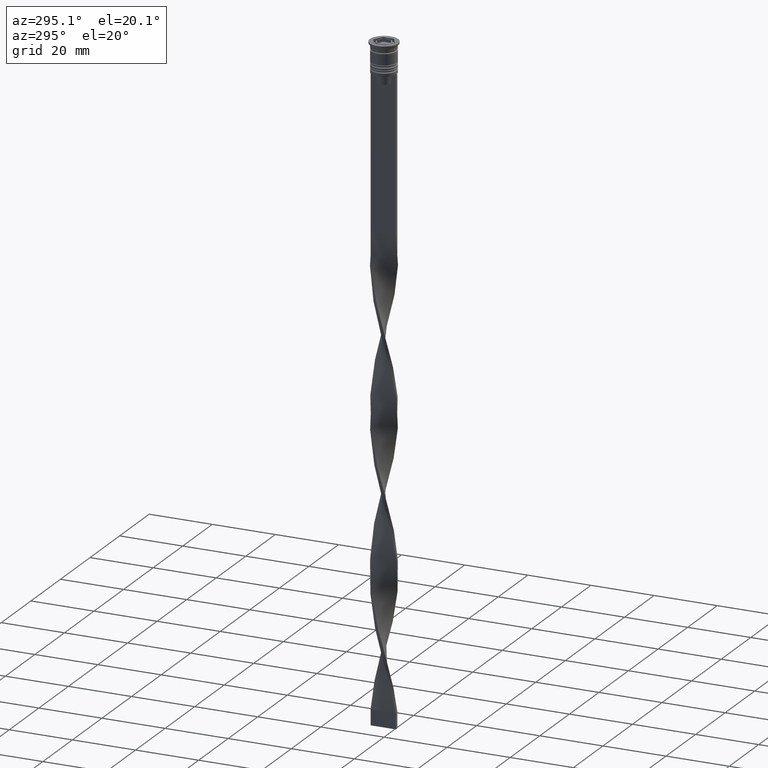
[diagram: clean part render]
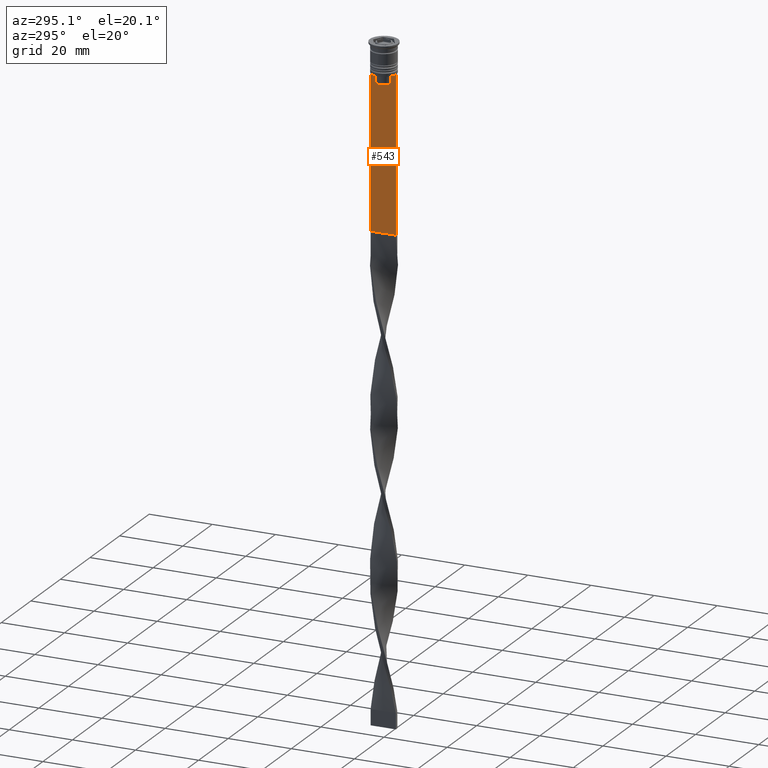
[diagram: same view with one face highlighted and labeled with its STEP entity id]
A machine part, auxiliary view. The second image highlights one B-rep face of the part: STEP entity #543.
In plain terms, the highlighted planar face has unit normal (-1, 0, 0).
Its self-contained STEP definition (entity closure, byte-faithful):
#21 = VERTEX_POINT ( 'NONE', #3205 ) ;
#33 = VERTEX_POINT ( 'NONE', #484 ) ;
#40 = EDGE_CURVE ( 'NONE', #1028, #3893, #1703, .T. ) ;
#43 = PLANE ( 'NONE',  #3659 ) ;
#158 = EDGE_CURVE ( 'NONE', #2777, #1595, #2287, .T. ) ;
#190 = CARTESIAN_POINT ( 'NONE',  ( -0.5000000000000000000, 2.347338918861097135, 0.000000000000000000 ) ) ;
#229 = VECTOR ( 'NONE', #1088, 1000.000000000000000 ) ;
#271 = CARTESIAN_POINT ( 'NONE',  ( -0.5000000000000000000, 2.347338918861097135, -10.00000000000000000 ) ) ;
#278 = ORIENTED_EDGE ( 'NONE', *, *, #158, .F. ) ;
#314 = VERTEX_POINT ( 'NONE', #2735 ) ;
#328 = LINE ( 'NONE', #814, #2248 ) ;
#343 = CARTESIAN_POINT ( 'NONE',  ( -0.5000000000000000000, -2.347338918861097135, -10.00000000000000000 ) ) ;
#484 = CARTESIAN_POINT ( 'NONE',  ( -0.5000000000000000000, -2.856571371417138572, -9.500000000000000000 ) ) ;
#501 = EDGE_CURVE ( 'NONE', #3893, #314, #1235, .T. ) ;
#543 = ADVANCED_FACE ( 'NONE', ( #2808 ), #43, .T. ) ;
#570 = VERTEX_POINT ( 'NONE', #2257 ) ;
#571 = CARTESIAN_POINT ( 'NONE',  ( -0.5000000000000000000, -4.000000000000000000, -9.500000000000000000 ) ) ;
#587 = DIRECTION ( 'NONE',  ( 0.000000000000000000, 1.000000000000000000, 0.000000000000000000 ) ) ;
#604 = VECTOR ( 'NONE', #1082, 1000.000000000000000 ) ;
#655 = CARTESIAN_POINT ( 'NONE',  ( -0.5000000000000000000, -2.347338918861097135, -10.00000000000000000 ) ) ;
#658 = ORIENTED_EDGE ( 'NONE', *, *, #3559, .F. ) ;
#733 = CARTESIAN_POINT ( 'NONE',  ( -0.5000000000000000000, -4.000000000000000000, -9.500000000000000000 ) ) ;
#766 = EDGE_CURVE ( 'NONE', #33, #3212, #3457, .T. ) ;
#775 = CARTESIAN_POINT ( 'NONE',  ( -0.5000000000000000000, -4.000000000000000000, -9.500000000000000000 ) ) ;
#814 = CARTESIAN_POINT ( 'NONE',  ( -0.5000000000000000000, -4.000000000000000000, -58.50000000000000000 ) ) ;
#815 = LINE ( 'NONE', #775, #3220 ) ;
#851 = B_SPLINE_CURVE_WITH_KNOTS ( 'NONE', 3,
 ( #343, #1604, #3764, #2243 ),
 .UNSPECIFIED., .F., .F.,
 ( 4, 4 ),
 ( 0.01178336557230038641, 0.01249758354768160454 ),
 .UNSPECIFIED. ) ;
#852 = CARTESIAN_POINT ( 'NONE',  ( -0.5000000000000000000, 4.000000000000000000, -1.437742251701450202 ) ) ;
#857 = DIRECTION ( 'NONE',  ( -0.000000000000000000, -0.000000000000000000, 1.000000000000000000 ) ) ;
#869 = EDGE_CURVE ( 'NONE', #1595, #570, #328, .T. ) ;
#968 = ORIENTED_EDGE ( 'NONE', *, *, #3587, .F. ) ;
#1028 = VERTEX_POINT ( 'NONE', #3876 ) ;
#1052 = CARTESIAN_POINT ( 'NONE',  ( -0.5000000000000000000, -4.000000000000000000, -9.500000000000000000 ) ) ;
#1082 = DIRECTION ( 'NONE',  ( 0.000000000000000000, 0.000000000000000000, -1.000000000000000000 ) ) ;
#1088 = DIRECTION ( 'NONE',  ( 0.000000000000000000, 0.000000000000000000, -1.000000000000000000 ) ) ;
#1144 = CARTESIAN_POINT ( 'NONE',  ( -0.5000000000000000000, 2.517407211010871393, -9.833663366238582171 ) ) ;
#1157 = EDGE_CURVE ( 'NONE', #2724, #570, #2598, .T. ) ;
#1186 = VECTOR ( 'NONE', #1489, 1000.000000000000000 ) ;
#1196 = VECTOR ( 'NONE', #1724, 1000.000000000000000 ) ;
#1207 = CARTESIAN_POINT ( 'NONE',  ( -0.5000000000000000000, 2.687094542495897631, -9.666938847453439010 ) ) ;
#1235 = LINE ( 'NONE', #1558, #3463 ) ;
#1346 = ORIENTED_EDGE ( 'NONE', *, *, #2857, .F. ) ;
#1393 = DIRECTION ( 'NONE',  ( 0.000000000000000000, -1.000000000000000000, 0.000000000000000000 ) ) ;
#1410 = B_SPLINE_CURVE_WITH_KNOTS ( 'NONE', 3,
 ( #1469, #1207, #1144, #271 ),
 .UNSPECIFIED., .F., .F.,
 ( 4, 4 ),
 ( 0.004956812174141195064, 0.005670477137898153989 ),
 .UNSPECIFIED. ) ;
#1447 = LINE ( 'NONE', #571, #1196 ) ;
#1453 = EDGE_CURVE ( 'NONE', #3302, #33, #851, .T. ) ;
#1469 = CARTESIAN_POINT ( 'NONE',  ( -0.5000000000000000000, 2.856571371417138572, -9.500000000000000000 ) ) ;
#1489 = DIRECTION ( 'NONE',  ( 0.000000000000000000, -1.000000000000000000, 0.000000000000000000 ) ) ;
#1535 = ORIENTED_EDGE ( 'NONE', *, *, #501, .F. ) ;
#1558 = CARTESIAN_POINT ( 'NONE',  ( -0.5000000000000000000, 2.399999999999996803, -12.50000000000000000 ) ) ;
#1595 = VERTEX_POINT ( 'NONE', #2603 ) ;
#1604 = CARTESIAN_POINT ( 'NONE',  ( -0.5000000000000000000, -2.517408374291112416, -9.833662228483172285 ) ) ;
#1663 = DIRECTION ( 'NONE',  ( 0.000000000000000000, 0.000000000000000000, -1.000000000000000000 ) ) ;
#1678 = CARTESIAN_POINT ( 'NONE',  ( -0.5000000000000000000, -4.000000000000000000, -1.437742251701450202 ) ) ;
#1703 = LINE ( 'NONE', #190, #3717 ) ;
#1724 = DIRECTION ( 'NONE',  ( 0.000000000000000000, -1.000000000000000000, 0.000000000000000000 ) ) ;
#1794 = EDGE_CURVE ( 'NONE', #314, #3302, #3256, .T. ) ;
#1873 = DIRECTION ( 'NONE',  ( 0.000000000000000000, -1.000000000000000000, 0.000000000000000000 ) ) ;
#2115 = LINE ( 'NONE', #2679, #1186 ) ;
#2128 = VECTOR ( 'NONE', #3633, 1000.000000000000000 ) ;
#2160 = ORIENTED_EDGE ( 'NONE', *, *, #2173, .F. ) ;
#2173 = EDGE_CURVE ( 'NONE', #3212, #2777, #2115, .T. ) ;
#2207 = DIRECTION ( 'NONE',  ( -1.000000000000000000, 0.000000000000000000, 0.000000000000000000 ) ) ;
#2243 = CARTESIAN_POINT ( 'NONE',  ( -0.5000000000000000000, -2.856571371417138572, -9.500000000000000000 ) ) ;
#2248 = VECTOR ( 'NONE', #587, 1000.000000000000000 ) ;
#2254 = VECTOR ( 'NONE', #857, 1000.000000000000000 ) ;
#2257 = CARTESIAN_POINT ( 'NONE',  ( -0.5000000000000000000, 4.000000000000000000, -58.50000000000000000 ) ) ;
#2260 = CARTESIAN_POINT ( 'NONE',  ( -0.5000000000000000000, 2.347338918861097135, -12.50000000000000000 ) ) ;
#2287 = LINE ( 'NONE', #1678, #604 ) ;
#2419 = VERTEX_POINT ( 'NONE', #2670 ) ;
#2465 = CARTESIAN_POINT ( 'NONE',  ( -0.5000000000000000000, -4.000000000000000000, -1.437742251701450202 ) ) ;
#2487 = CARTESIAN_POINT ( 'NONE',  ( -0.5000000000000000000, 4.000000000000000000, -9.500000000000000000 ) ) ;
#2598 = LINE ( 'NONE', #852, #229 ) ;
#2603 = CARTESIAN_POINT ( 'NONE',  ( -0.5000000000000000000, -4.000000000000000000, -58.50000000000000000 ) ) ;
#2670 = CARTESIAN_POINT ( 'NONE',  ( -0.5000000000000000000, 3.867815921162741422, -9.500000000000000000 ) ) ;
#2679 = CARTESIAN_POINT ( 'NONE',  ( -0.5000000000000000000, -4.000000000000000000, -9.500000000000000000 ) ) ;
#2724 = VERTEX_POINT ( 'NONE', #2487 ) ;
#2735 = CARTESIAN_POINT ( 'NONE',  ( -0.5000000000000000000, -2.347338918861097135, -12.50000000000000000 ) ) ;
#2777 = VERTEX_POINT ( 'NONE', #1052 ) ;
#2785 = ORIENTED_EDGE ( 'NONE', *, *, #766, .F. ) ;
#2790 = ORIENTED_EDGE ( 'NONE', *, *, #40, .F. ) ;
#2808 = FACE_OUTER_BOUND ( 'NONE', #3765, .T. ) ;
#2857 = EDGE_CURVE ( 'NONE', #2419, #21, #815, .T. ) ;
#3002 = ORIENTED_EDGE ( 'NONE', *, *, #1157, .T. ) ;
#3013 = ORIENTED_EDGE ( 'NONE', *, *, #869, .F. ) ;
#3124 = DIRECTION ( 'NONE',  ( 0.000000000000000000, 0.000000000000000000, 1.000000000000000000 ) ) ;
#3205 = CARTESIAN_POINT ( 'NONE',  ( -0.5000000000000000000, 2.856571371417138572, -9.500000000000000000 ) ) ;
#3212 = VERTEX_POINT ( 'NONE', #3678 ) ;
#3220 = VECTOR ( 'NONE', #1393, 1000.000000000000000 ) ;
#3256 = LINE ( 'NONE', #3642, #2254 ) ;
#3302 = VERTEX_POINT ( 'NONE', #655 ) ;
#3457 = LINE ( 'NONE', #733, #2128 ) ;
#3463 = VECTOR ( 'NONE', #1873, 1000.000000000000000 ) ;
#3556 = ORIENTED_EDGE ( 'NONE', *, *, #1794, .F. ) ;
#3559 = EDGE_CURVE ( 'NONE', #2724, #2419, #1447, .T. ) ;
#3587 = EDGE_CURVE ( 'NONE', #21, #1028, #1410, .T. ) ;
#3633 = DIRECTION ( 'NONE',  ( 0.000000000000000000, -1.000000000000000000, 0.000000000000000000 ) ) ;
#3642 = CARTESIAN_POINT ( 'NONE',  ( -0.5000000000000000000, -2.347338918861097135, 0.000000000000000000 ) ) ;
#3659 = AXIS2_PLACEMENT_3D ( 'NONE', #2465, #2207, #3124 ) ;
#3678 = CARTESIAN_POINT ( 'NONE',  ( -0.5000000000000000000, -3.867815921162741422, -9.500000000000000000 ) ) ;
#3717 = VECTOR ( 'NONE', #1663, 1000.000000000000000 ) ;
#3764 = CARTESIAN_POINT ( 'NONE',  ( -0.5000000000000000000, -2.687095498514037839, -9.666937905752043037 ) ) ;
#3765 = EDGE_LOOP ( 'NONE', ( #968, #1346, #658, #3002, #3013, #278, #2160, #2785, #3769, #3556, #1535, #2790 ) ) ;
#3769 = ORIENTED_EDGE ( 'NONE', *, *, #1453, .F. ) ;
#3876 = CARTESIAN_POINT ( 'NONE',  ( -0.5000000000000000000, 2.347338918861097135, -10.00000000000000000 ) ) ;
#3893 = VERTEX_POINT ( 'NONE', #2260 ) ;